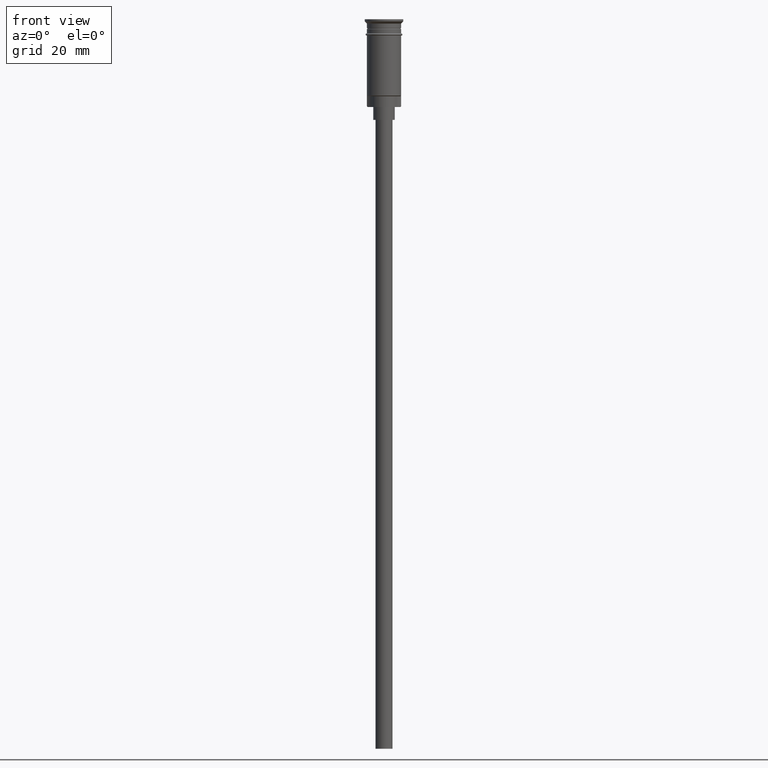
[diagram: clean part render]
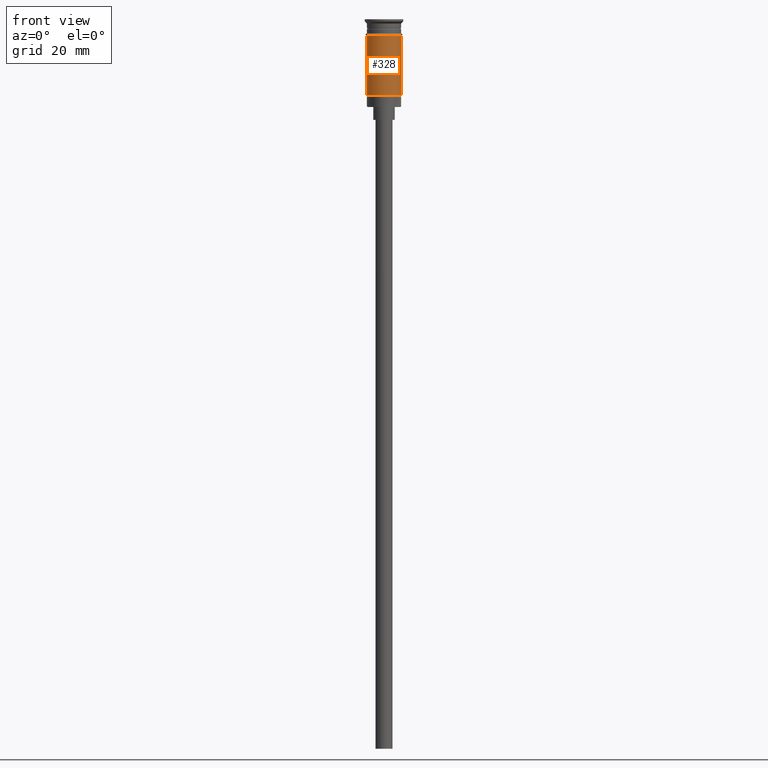
[diagram: same view with one face highlighted and labeled with its STEP entity id]
A machine part, front view. The second image highlights one B-rep face of the part: STEP entity #328.
In plain terms, the highlighted cylindrical surface (edge-blend (fillet) strip) has radius 4 mm, axis along (-0, -0, 1).
Its self-contained STEP definition (entity closure, byte-faithful):
#3 = DIRECTION ( 'NONE',  ( 1.000000000000000000, 0.000000000000000000, 0.000000000000000000 ) ) ;
#6 = EDGE_CURVE ( 'NONE', #646, #775, #202, .T. ) ;
#64 = VECTOR ( 'NONE', #815, 1000.000000000000000 ) ;
#151 = CARTESIAN_POINT ( 'NONE',  ( -3.999999999999997335, 0.000000000000000000, -17.79999999999998295 ) ) ;
#166 = CIRCLE ( 'NONE', #1300, 4.000000000000000000 ) ;
#202 = LINE ( 'NONE', #233, #64 ) ;
#233 = CARTESIAN_POINT ( 'NONE',  ( -4.000000000000000000, 4.898587196589412829E-16, 0.000000000000000000 ) ) ;
#253 = CARTESIAN_POINT ( 'NONE',  ( 0.000000000000000000, 0.000000000000000000, 0.000000000000000000 ) ) ;
#276 = CARTESIAN_POINT ( 'NONE',  ( -4.000000000000000000, 4.898587196589412829E-16, -3.799999999999998490 ) ) ;
#328 = ADVANCED_FACE ( 'NONE', ( #980 ), #1207, .T. ) ;
#425 = EDGE_LOOP ( 'NONE', ( #426, #444, #738, #1507 ) ) ;
#426 = ORIENTED_EDGE ( 'NONE', *, *, #6, .F. ) ;
#444 = ORIENTED_EDGE ( 'NONE', *, *, #1293, .T. ) ;
#516 = VERTEX_POINT ( 'NONE', #1354 ) ;
#548 = DIRECTION ( 'NONE',  ( 1.000000000000000000, 0.000000000000000000, 0.000000000000000000 ) ) ;
#617 = AXIS2_PLACEMENT_3D ( 'NONE', #253, #724, #3 ) ;
#620 = VERTEX_POINT ( 'NONE', #961 ) ;
#646 = VERTEX_POINT ( 'NONE', #151 ) ;
#703 = CARTESIAN_POINT ( 'NONE',  ( 4.000000000000000000, 0.000000000000000000, 0.000000000000000000 ) ) ;
#724 = DIRECTION ( 'NONE',  ( -0.000000000000000000, -0.000000000000000000, 1.000000000000000000 ) ) ;
#738 = ORIENTED_EDGE ( 'NONE', *, *, #1191, .T. ) ;
#775 = VERTEX_POINT ( 'NONE', #276 ) ;
#815 = DIRECTION ( 'NONE',  ( -0.000000000000000000, -0.000000000000000000, 1.000000000000000000 ) ) ;
#821 = DIRECTION ( 'NONE',  ( -0.000000000000000000, -0.000000000000000000, 1.000000000000000000 ) ) ;
#849 = AXIS2_PLACEMENT_3D ( 'NONE', #1529, #907, #548 ) ;
#907 = DIRECTION ( 'NONE',  ( -0.000000000000000000, -0.000000000000000000, 1.000000000000000000 ) ) ;
#950 = LINE ( 'NONE', #703, #1352 ) ;
#956 = DIRECTION ( 'NONE',  ( -0.000000000000000000, -0.000000000000000000, 1.000000000000000000 ) ) ;
#961 = CARTESIAN_POINT ( 'NONE',  ( 4.000000000000000000, 0.000000000000000000, -3.799999999999998490 ) ) ;
#980 = FACE_OUTER_BOUND ( 'NONE', #425, .T. ) ;
#1022 = EDGE_CURVE ( 'NONE', #775, #620, #1419, .T. ) ;
#1086 = CARTESIAN_POINT ( 'NONE',  ( 0.000000000000000000, 0.000000000000000000, -17.79999999999998295 ) ) ;
#1191 = EDGE_CURVE ( 'NONE', #516, #620, #950, .T. ) ;
#1207 = CYLINDRICAL_SURFACE ( 'NONE', #617, 4.000000000000000000 ) ;
#1293 = EDGE_CURVE ( 'NONE', #646, #516, #166, .T. ) ;
#1300 = AXIS2_PLACEMENT_3D ( 'NONE', #1086, #821, #1309 ) ;
#1309 = DIRECTION ( 'NONE',  ( -1.000000000000000000, 0.000000000000000000, 0.000000000000000000 ) ) ;
#1352 = VECTOR ( 'NONE', #956, 1000.000000000000000 ) ;
#1354 = CARTESIAN_POINT ( 'NONE',  ( 4.000000000000000000, 4.898587196589412829E-16, -17.79999999999998295 ) ) ;
#1419 = CIRCLE ( 'NONE', #849, 4.000000000000000000 ) ;
#1507 = ORIENTED_EDGE ( 'NONE', *, *, #1022, .F. ) ;
#1529 = CARTESIAN_POINT ( 'NONE',  ( 0.000000000000000000, 0.000000000000000000, -3.799999999999998490 ) ) ;